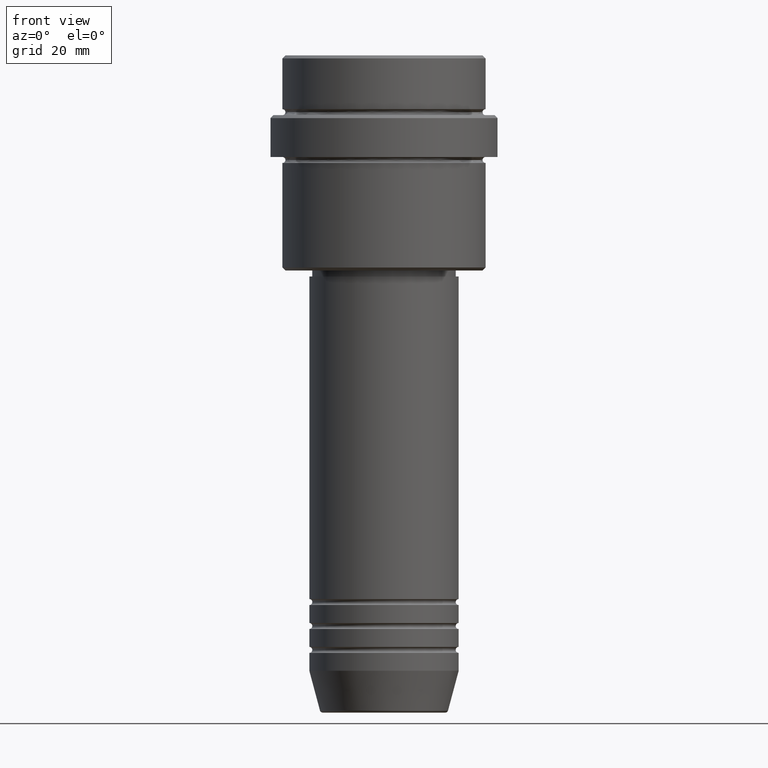
[diagram: clean part render]
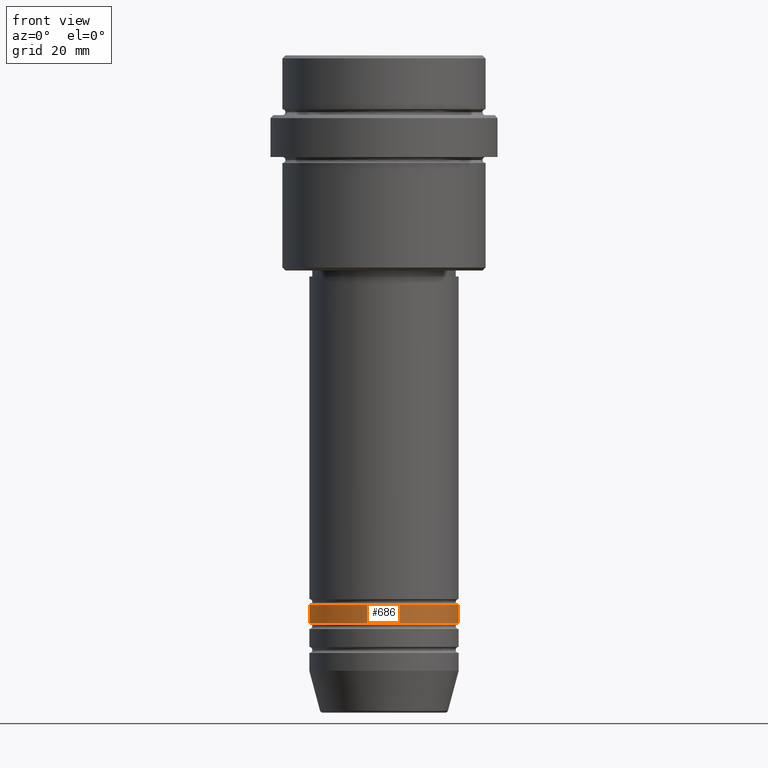
[diagram: same view with one face highlighted and labeled with its STEP entity id]
A machine part, front view. The second image highlights one B-rep face of the part: STEP entity #686.
In plain terms, the highlighted cylindrical surface (partial cylindrical patch) has radius 12.5 mm, axis along (-0, -0, 1).
Its self-contained STEP definition (entity closure, byte-faithful):
#27 = VERTEX_POINT ( 'NONE', #532 ) ;
#41 = CIRCLE ( 'NONE', #1092, 12.50000000000000000 ) ;
#89 = FACE_OUTER_BOUND ( 'NONE', #1061, .T. ) ;
#102 = ORIENTED_EDGE ( 'NONE', *, *, #172, .F. ) ;
#106 = VERTEX_POINT ( 'NONE', #1125 ) ;
#119 = DIRECTION ( 'NONE',  ( 1.000000000000000000, 0.000000000000000000, 0.000000000000000000 ) ) ;
#172 = EDGE_CURVE ( 'NONE', #390, #27, #699, .T. ) ;
#173 = AXIS2_PLACEMENT_3D ( 'NONE', #528, #649, #970 ) ;
#238 = DIRECTION ( 'NONE',  ( -0.000000000000000000, -0.000000000000000000, 1.000000000000000000 ) ) ;
#390 = VERTEX_POINT ( 'NONE', #553 ) ;
#480 = DIRECTION ( 'NONE',  ( -0.000000000000000000, -0.000000000000000000, 1.000000000000000000 ) ) ;
#528 = CARTESIAN_POINT ( 'NONE',  ( 0.000000000000000000, 0.000000000000000000, 0.000000000000000000 ) ) ;
#532 = CARTESIAN_POINT ( 'NONE',  ( 12.50000000000000000, 0.000000000000000000, -91.99999999999988631 ) ) ;
#553 = CARTESIAN_POINT ( 'NONE',  ( -12.50000000000000000, 1.530808498934191521E-15, -91.99999999999988631 ) ) ;
#571 = CARTESIAN_POINT ( 'NONE',  ( 12.50000000000000000, 0.000000000000000000, -94.99999999999988631 ) ) ;
#590 = CARTESIAN_POINT ( 'NONE',  ( 0.000000000000000000, 0.000000000000000000, -91.99999999999988631 ) ) ;
#610 = VECTOR ( 'NONE', #1301, 1000.000000000000000 ) ;
#621 = VERTEX_POINT ( 'NONE', #571 ) ;
#648 = ORIENTED_EDGE ( 'NONE', *, *, #687, .T. ) ;
#649 = DIRECTION ( 'NONE',  ( -0.000000000000000000, -0.000000000000000000, 1.000000000000000000 ) ) ;
#662 = DIRECTION ( 'NONE',  ( -0.000000000000000000, -0.000000000000000000, 1.000000000000000000 ) ) ;
#686 = ADVANCED_FACE ( 'NONE', ( #89 ), #1311, .T. ) ;
#687 = EDGE_CURVE ( 'NONE', #106, #621, #41, .T. ) ;
#699 = CIRCLE ( 'NONE', #1288, 12.50000000000000000 ) ;
#724 = ORIENTED_EDGE ( 'NONE', *, *, #1287, .F. ) ;
#875 = CARTESIAN_POINT ( 'NONE',  ( 0.000000000000000000, 0.000000000000000000, -94.99999999999988631 ) ) ;
#878 = LINE ( 'NONE', #1402, #610 ) ;
#970 = DIRECTION ( 'NONE',  ( 1.000000000000000000, 0.000000000000000000, 0.000000000000000000 ) ) ;
#1036 = DIRECTION ( 'NONE',  ( 1.000000000000000000, 0.000000000000000000, 0.000000000000000000 ) ) ;
#1052 = VECTOR ( 'NONE', #238, 1000.000000000000000 ) ;
#1061 = EDGE_LOOP ( 'NONE', ( #724, #648, #1362, #102 ) ) ;
#1092 = AXIS2_PLACEMENT_3D ( 'NONE', #875, #662, #119 ) ;
#1125 = CARTESIAN_POINT ( 'NONE',  ( -12.50000000000000000, 1.530808498934191521E-15, -94.99999999999988631 ) ) ;
#1190 = LINE ( 'NONE', #1324, #1052 ) ;
#1287 = EDGE_CURVE ( 'NONE', #106, #390, #1190, .T. ) ;
#1288 = AXIS2_PLACEMENT_3D ( 'NONE', #590, #480, #1036 ) ;
#1301 = DIRECTION ( 'NONE',  ( -0.000000000000000000, -0.000000000000000000, 1.000000000000000000 ) ) ;
#1311 = CYLINDRICAL_SURFACE ( 'NONE', #173, 12.50000000000000000 ) ;
#1324 = CARTESIAN_POINT ( 'NONE',  ( -12.50000000000000000, 1.530808498934191521E-15, 0.000000000000000000 ) ) ;
#1361 = EDGE_CURVE ( 'NONE', #621, #27, #878, .T. ) ;
#1362 = ORIENTED_EDGE ( 'NONE', *, *, #1361, .T. ) ;
#1402 = CARTESIAN_POINT ( 'NONE',  ( 12.50000000000000000, 0.000000000000000000, 0.000000000000000000 ) ) ;